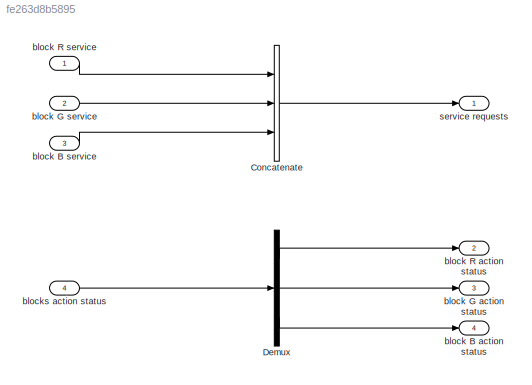
MODEL slx_fe263d8b5895
KIND model
WORKSPACE source: MAT-file member
WORKSPACE ini_block_hpos = -0.4
BLOCK [Concatenate] Concatenate
  NumInputs = 3
  Ports = [3, 1]
BLOCK [Demux] Demux
  DisplayOption = bar
  Outputs = 3
  Ports = [1, 3]
BLOCK [Outport] block B action status
  IconDisplay = Port number
  Port = 4
BLOCK [Inport] block B service
  BusOutputAsStruct = on
  IconDisplay = Port number
  OutDataTypeStr = Bus: slBusBlockOps
  Port = 3
BLOCK [Outport] block G action status
  IconDisplay = Port number
  Port = 3
BLOCK [Inport] block G service
  BusOutputAsStruct = on
  IconDisplay = Port number
  OutDataTypeStr = Bus: slBusBlockOps
  Port = 2
BLOCK [Outport] block R action status
  IconDisplay = Port number
  Port = 2
BLOCK [Inport] block R service
  BusOutputAsStruct = on
  IconDisplay = Port number
  OutDataTypeStr = Bus: slBusBlockOps
BLOCK [Inport] blocks action status
  IconDisplay = Port number
  Port = 4
BLOCK [Outport] service requests
  BusOutputAsStruct = on
  IconDisplay = Port number
  OutDataTypeStr = Bus: slBusBlockOps
  PortDimensions = 3
LINE Concatenate:1 -> service requests:1
LINE Demux:1 -> block R action status:1
LINE Demux:2 -> block G action status:1
LINE Demux:3 -> block B action status:1
LINE block B service:1 -> Concatenate:3
LINE block G service:1 -> Concatenate:2
LINE block R service:1 -> Concatenate:1
LINE blocks action status:1 -> Demux:1
